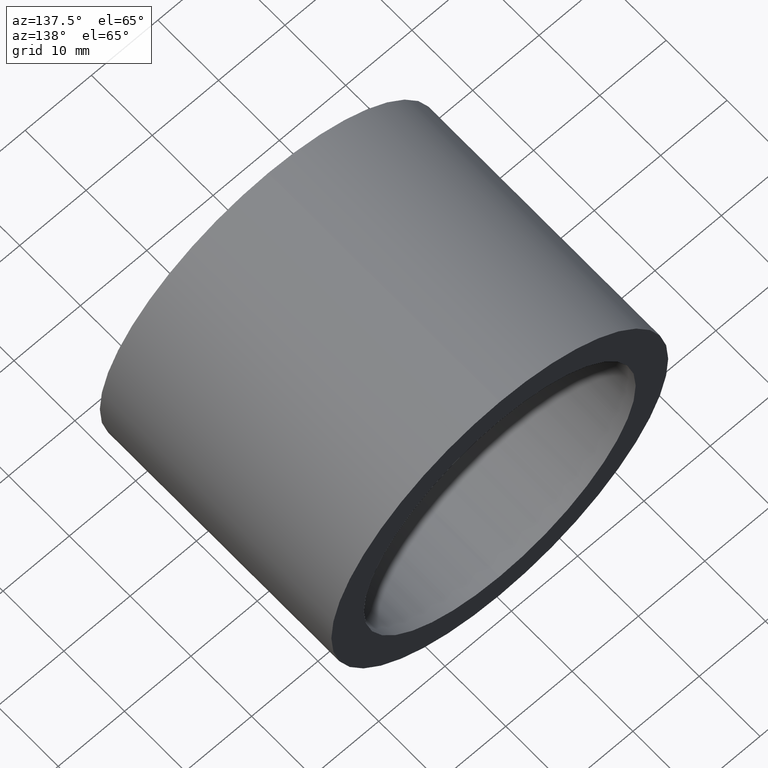
[diagram: clean part render]
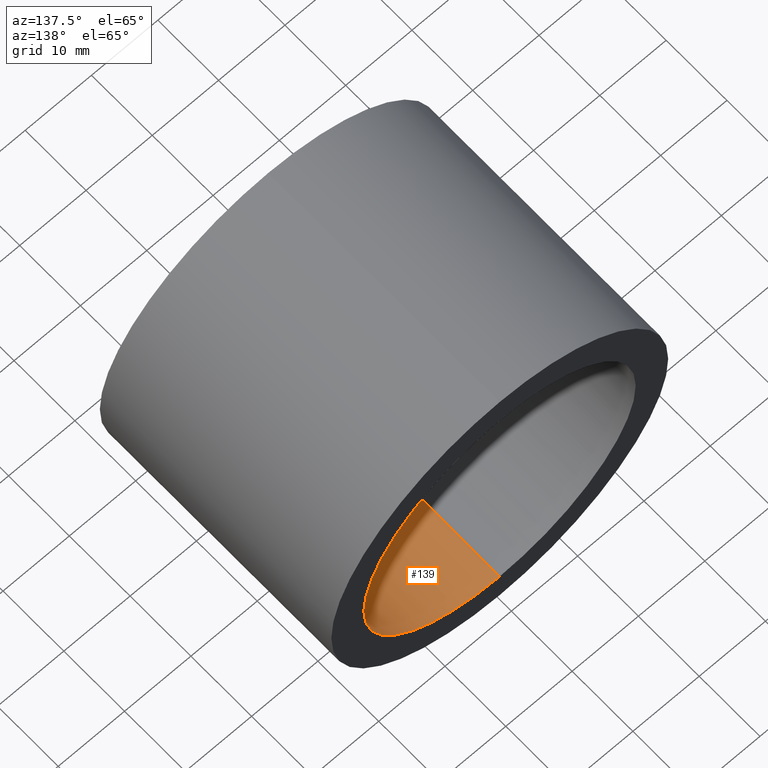
[diagram: same view with one face highlighted and labeled with its STEP entity id]
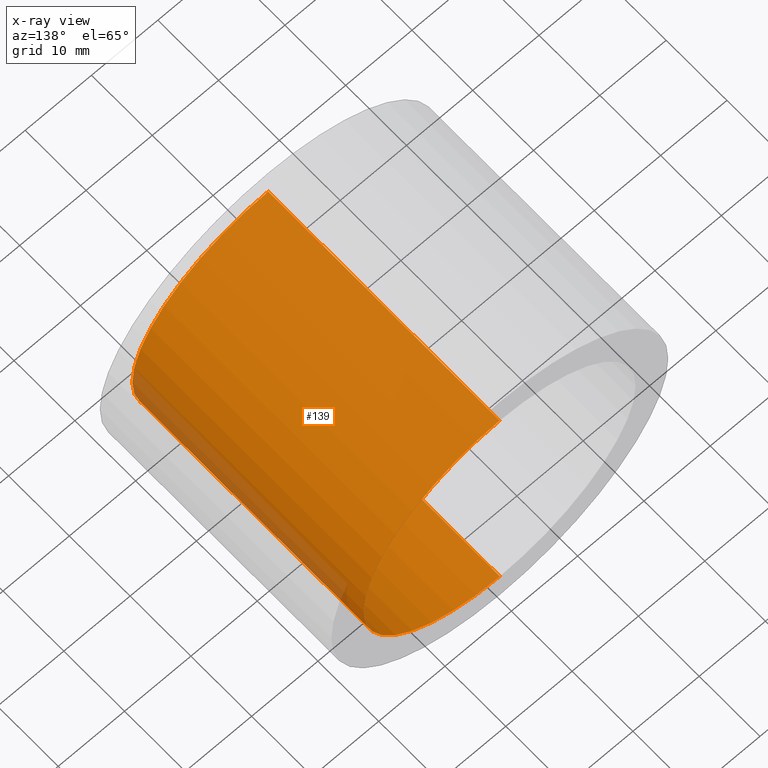
[diagram: x-ray of the same camera — body ghosted, the highlighted face saturated]
A machine part, auxiliary view. The second image highlights one B-rep face of the part: STEP entity #139.
The next image is the same camera in x-ray: the body ghosted, the highlighted face saturated — about 6% of this face is hidden behind the body in this view.
In plain terms, the highlighted cylindrical surface (partial cylindrical patch) has radius 20.5 mm, axis along (-0, 1, -0).
Its self-contained STEP definition (entity closure, byte-faithful):
#1 = CARTESIAN_POINT ( 'NONE',  ( 0.0000000000000000000, -2.775557561562891400E-014, 0.0000000000000000000 ) ) ;
#2 = FACE_OUTER_BOUND ( 'NONE', #161, .T. ) ;
#7 = EDGE_CURVE ( 'NONE', #56, #163, #204, .T. ) ;
#8 = ORIENTED_EDGE ( 'NONE', *, *, #162, .F. ) ;
#13 = DIRECTION ( 'NONE',  ( -0.0000000000000000000, 1.000000000000000000, -0.0000000000000000000 ) ) ;
#30 = VERTEX_POINT ( 'NONE', #151 ) ;
#32 = DIRECTION ( 'NONE',  ( -0.0000000000000000000, 1.000000000000000000, -0.0000000000000000000 ) ) ;
#43 = EDGE_CURVE ( 'NONE', #187, #56, #198, .T. ) ;
#51 = ORIENTED_EDGE ( 'NONE', *, *, #43, .T. ) ;
#52 = AXIS2_PLACEMENT_3D ( 'NONE', #136, #243, #116 ) ;
#56 = VERTEX_POINT ( 'NONE', #167 ) ;
#70 = AXIS2_PLACEMENT_3D ( 'NONE', #1, #154, #100 ) ;
#73 = CARTESIAN_POINT ( 'NONE',  ( 0.0000000000000000000, 38.09999999999999400, 0.0000000000000000000 ) ) ;
#74 = LINE ( 'NONE', #241, #234 ) ;
#100 = DIRECTION ( 'NONE',  ( 0.0000000000000000000, 0.0000000000000000000, 1.000000000000000000 ) ) ;
#116 = DIRECTION ( 'NONE',  ( 0.0000000000000000000, 0.0000000000000000000, 1.000000000000000000 ) ) ;
#121 = VECTOR ( 'NONE', #129, 1000.000000000000000 ) ;
#123 = CYLINDRICAL_SURFACE ( 'NONE', #52, 20.50000000000001800 ) ;
#129 = DIRECTION ( 'NONE',  ( -0.0000000000000000000, 1.000000000000000000, -0.0000000000000000000 ) ) ;
#136 = CARTESIAN_POINT ( 'NONE',  ( 0.0000000000000000000, 161.3761669434274500, 0.0000000000000000000 ) ) ;
#139 = ADVANCED_FACE ( 'NONE', ( #2 ), #123, .F. ) ;
#151 = CARTESIAN_POINT ( 'NONE',  ( 2.510525938252076500E-015, -2.775557561562891400E-014, -20.50000000000002100 ) ) ;
#154 = DIRECTION ( 'NONE',  ( -0.0000000000000000000, 1.000000000000000000, -0.0000000000000000000 ) ) ;
#161 = EDGE_LOOP ( 'NONE', ( #8, #236, #51, #242 ) ) ;
#162 = EDGE_CURVE ( 'NONE', #30, #163, #74, .T. ) ;
#163 = VERTEX_POINT ( 'NONE', #190 ) ;
#167 = CARTESIAN_POINT ( 'NONE',  ( 0.0000000000000000000, 38.09999999999999400, 20.50000000000001400 ) ) ;
#171 = CARTESIAN_POINT ( 'NONE',  ( 0.0000000000000000000, -2.775557561562891400E-014, 20.50000000000002100 ) ) ;
#174 = EDGE_CURVE ( 'NONE', #187, #30, #200, .T. ) ;
#186 = CARTESIAN_POINT ( 'NONE',  ( 0.0000000000000000000, 161.3761669434274500, 20.50000000000001800 ) ) ;
#187 = VERTEX_POINT ( 'NONE', #171 ) ;
#189 = AXIS2_PLACEMENT_3D ( 'NONE', #73, #32, #218 ) ;
#190 = CARTESIAN_POINT ( 'NONE',  ( 2.510525938252075700E-015, 38.09999999999999400, -20.50000000000001400 ) ) ;
#198 = LINE ( 'NONE', #186, #121 ) ;
#200 = CIRCLE ( 'NONE', #70, 20.50000000000002100 ) ;
#204 = CIRCLE ( 'NONE', #189, 20.50000000000001400 ) ;
#218 = DIRECTION ( 'NONE',  ( 0.0000000000000000000, 0.0000000000000000000, 1.000000000000000000 ) ) ;
#234 = VECTOR ( 'NONE', #13, 1000.000000000000000 ) ;
#236 = ORIENTED_EDGE ( 'NONE', *, *, #174, .F. ) ;
#241 = CARTESIAN_POINT ( 'NONE',  ( 2.510525938252076100E-015, 161.3761669434274500, -20.50000000000001800 ) ) ;
#242 = ORIENTED_EDGE ( 'NONE', *, *, #7, .T. ) ;
#243 = DIRECTION ( 'NONE',  ( -0.0000000000000000000, 1.000000000000000000, -0.0000000000000000000 ) ) ;